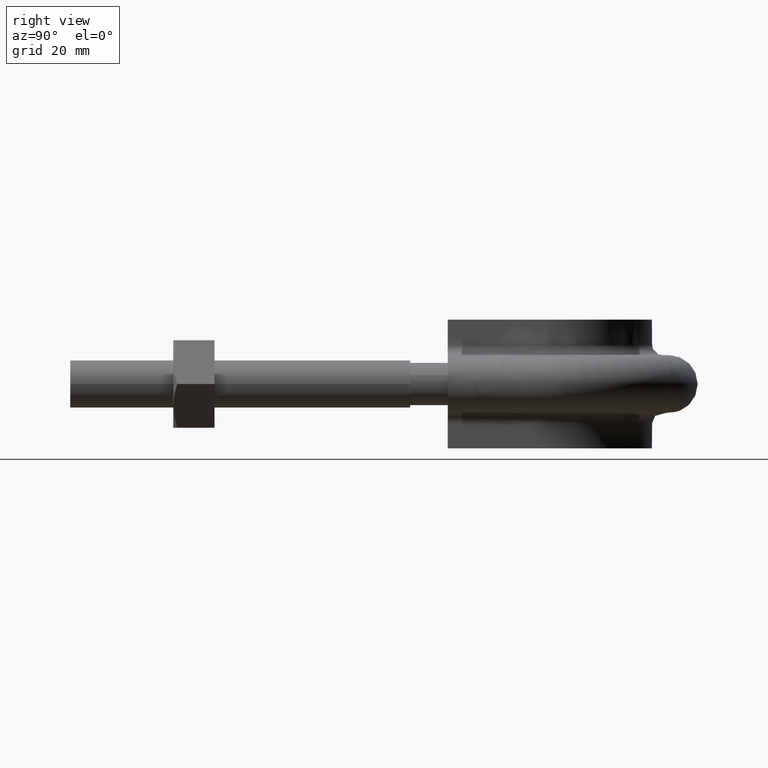
[diagram: clean part render]
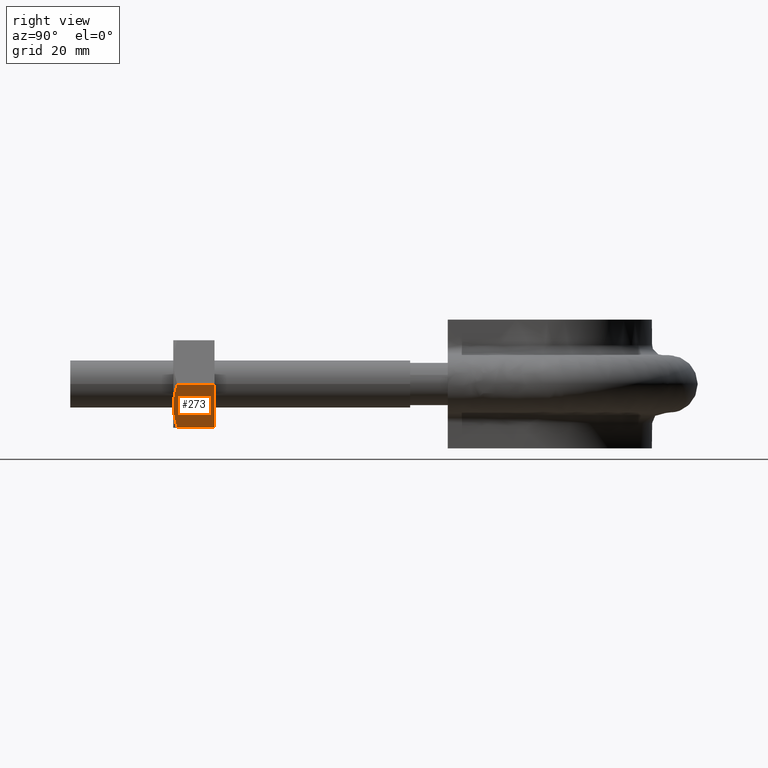
[diagram: same view with one face highlighted and labeled with its STEP entity id]
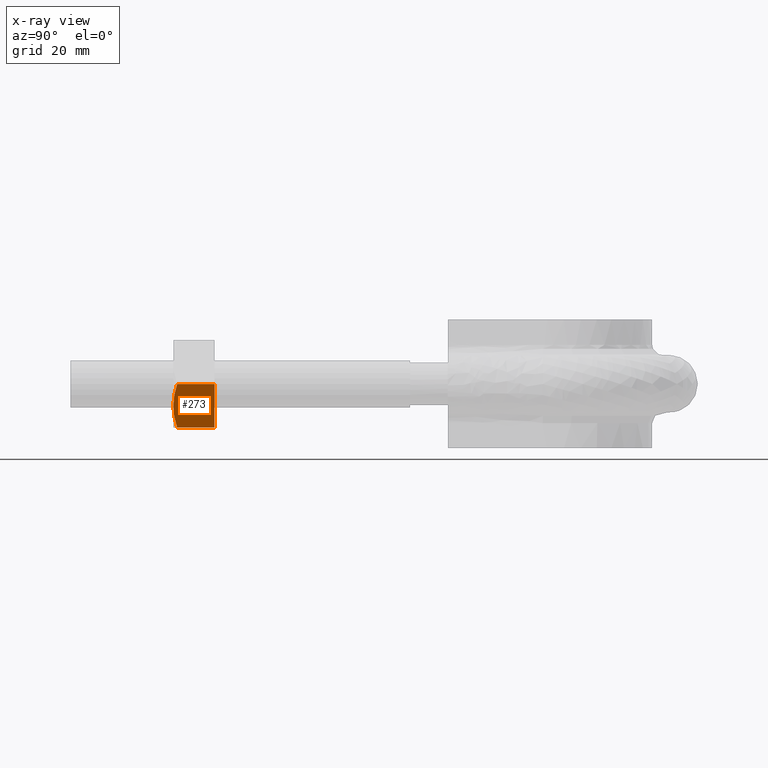
[diagram: x-ray of the same camera — body ghosted, the highlighted face saturated]
A machine part, right view. The second image highlights one B-rep face of the part: STEP entity #273.
The next image is the same camera in x-ray: the body ghosted, the highlighted face saturated — about 0% of this face is hidden behind the body in this view.
In plain terms, the highlighted planar face has unit normal (-0.866, 0, 0.5).
Its self-contained STEP definition (entity closure, byte-faithful):
#273 = ADVANCED_FACE( '', ( #416 ), #417, .F. );
#416 = FACE_OUTER_BOUND( '', #1259, .T. );
#417 = PLANE( '', #1260 );
#1259 = EDGE_LOOP( '', ( #1683, #1684, #1685, #1686, #1687 ) );
#1260 = AXIS2_PLACEMENT_3D( '', #1688, #1689, #1690 );
#1683 = ORIENTED_EDGE( '', *, *, #1940, .F. );
#1684 = ORIENTED_EDGE( '', *, *, #1947, .F. );
#1685 = ORIENTED_EDGE( '', *, *, #1948, .F. );
#1686 = ORIENTED_EDGE( '', *, *, #1949, .F. );
#1687 = ORIENTED_EDGE( '', *, *, #1950, .F. );
#1688 = CARTESIAN_POINT( '', ( 34.3149545762237, 28.0000000000000, 9.89822373370642E-015 ) );
#1689 = DIRECTION( '', ( -0.866025403784439, 5.90322481814055E-017, 0.500000000000000 ) );
#1690 = DIRECTION( '', ( 0.500000000000000, -3.87595688393741E-016, 0.866025403784438 ) );
#1940 = EDGE_CURVE( '', #2154, #2150, #2156, .T. );
#1947 = EDGE_CURVE( '', #2168, #2154, #2169, .T. );
#1948 = EDGE_CURVE( '', #2170, #2168, #2171, .F. );
#1949 = EDGE_CURVE( '', #2172, #2170, #2173, .T. );
#1950 = EDGE_CURVE( '', #2150, #2172, #2174, .T. );
#2150 = VERTEX_POINT( '', #2654 );
#2154 = VERTEX_POINT( '', #2663 );
#2156 = B_SPLINE_CURVE_WITH_KNOTS( '', 3, ( #2665, #2666, #2667, #2668, #2669, #2670, #2671, #2672 ), .UNSPECIFIED., .F., .F., ( 4, 2, 2, 4 ), ( 0.00493506423428099, 0.00616384870526321, 0.00739263317624543, 0.00985020211820987 ), .UNSPECIFIED. );
#2168 = VERTEX_POINT( '', #2684 );
#2169 = B_SPLINE_CURVE_WITH_KNOTS( '', 3, ( #2685, #2686, #2687, #2688, #2689, #2690 ), .UNSPECIFIED., .F., .F., ( 4, 2, 4 ), ( 4.83064900407315E-007, 0.00246777364959070, 0.00493506423428099 ), .UNSPECIFIED. );
#2170 = VERTEX_POINT( '', #2691 );
#2171 = LINE( '', #2692, #2693 );
#2172 = VERTEX_POINT( '', #2694 );
#2173 = LINE( '', #2695, #2696 );
#2174 = LINE( '', #2697, #2698 );
#2654 = CARTESIAN_POINT( '', ( 34.2999656118192, 20.7505553499465, -0.0259616479013730 ) );
#2663 = CARTESIAN_POINT( '', ( 31.8612159321678, 20.0000000000000, -4.24999999999999 ) );
#2665 = CARTESIAN_POINT( '', ( 31.8612159321678, 20.0000000000000, -4.24999999999999 ) );
#2666 = CARTESIAN_POINT( '', ( 32.0680704037744, 20.0000000000000, -3.89171754540440 ) );
#2667 = CARTESIAN_POINT( '', ( 32.2759593948815, 20.0177112081763, -3.53164325047275 ) );
#2668 = CARTESIAN_POINT( '', ( 32.6872159206789, 20.0863021936212, -2.81932605284735 ) );
#2669 = CARTESIAN_POINT( '', ( 32.8914770990593, 20.1371116504194, -2.46553531387867 ) );
#2670 = CARTESIAN_POINT( '', ( 33.5006504950013, 20.3331494013913, -1.41041604148787 ) );
#2671 = CARTESIAN_POINT( '', ( 33.9019659647124, 20.5218253127355, -0.715317258084872 ) );
#2672 = CARTESIAN_POINT( '', ( 34.2999656118192, 20.7505553499465, -0.0259616479013729 ) );
#2684 = CARTESIAN_POINT( '', ( 29.4224662525163, 20.7505553499465, -8.47403835209861 ) );
#2685 = CARTESIAN_POINT( '', ( 29.4224662525163, 20.7505553499465, -8.47403835209861 ) );
#2686 = CARTESIAN_POINT( '', ( 29.8215186167972, 20.5212203171277, -7.78285938228368 ) );
#2687 = CARTESIAN_POINT( '', ( 30.2234530850391, 20.3324525365441, -7.08668846197545 ) );
#2688 = CARTESIAN_POINT( '', ( 31.0355986234398, 20.0714148540586, -5.68001112632512 ) );
#2689 = CARTESIAN_POINT( '', ( 31.4458704405468, 20.0000000000000, -4.96939949418209 ) );
#2690 = CARTESIAN_POINT( '', ( 31.8612159321678, 20.0000000000000, -4.24999999999999 ) );
#2691 = CARTESIAN_POINT( '', ( 29.4224662525163, 28.0000000000000, -8.47403835209860 ) );
#2692 = CARTESIAN_POINT( '', ( 29.4224662525163, 28.0000000000000, -8.47403835209861 ) );
#2693 = VECTOR( '', #2999, 1000.00000000000 );
#2694 = CARTESIAN_POINT( '', ( 34.2999656118192, 28.0000000000000, -0.0259616479013734 ) );
#2695 = CARTESIAN_POINT( '', ( 34.3112159321678, 28.0000000000000, -0.00647552145624212 ) );
#2696 = VECTOR( '', #3000, 999.999999999999 );
#2697 = CARTESIAN_POINT( '', ( 34.2999656118192, 28.0000000000000, -0.0259616479013725 ) );
#2698 = VECTOR( '', #3001, 1000.00000000000 );
#2999 = DIRECTION( '', ( 2.44921270764475E-016, 1.00000000000000, 3.06151588455594E-016 ) );
#3000 = DIRECTION( '', ( -0.500000000000000, 3.87595688393741E-016, -0.866025403784438 ) );
#3001 = DIRECTION( '', ( 2.44921270764475E-016, 1.00000000000000, 3.06151588455594E-016 ) );